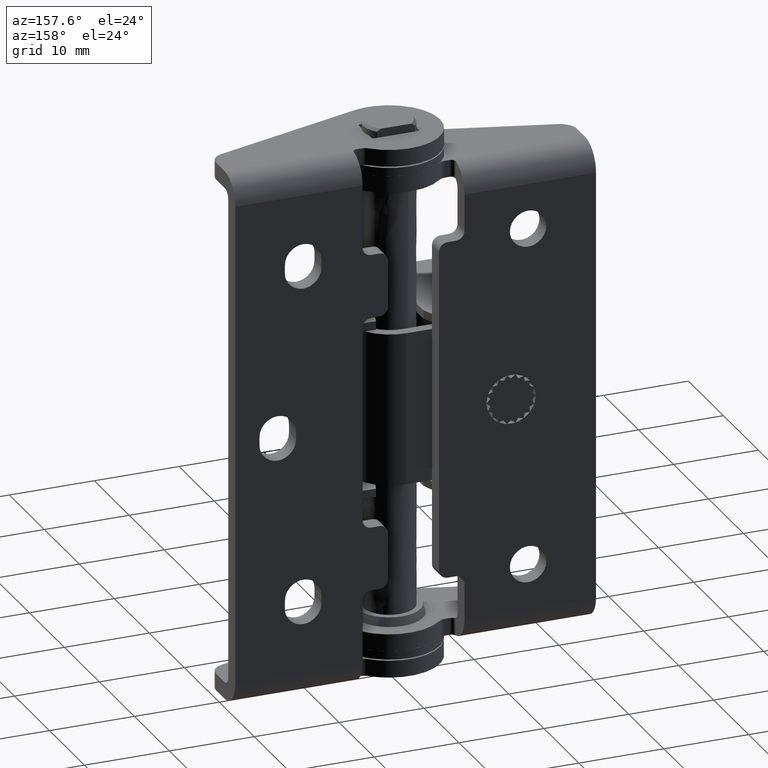
[diagram: clean part render]
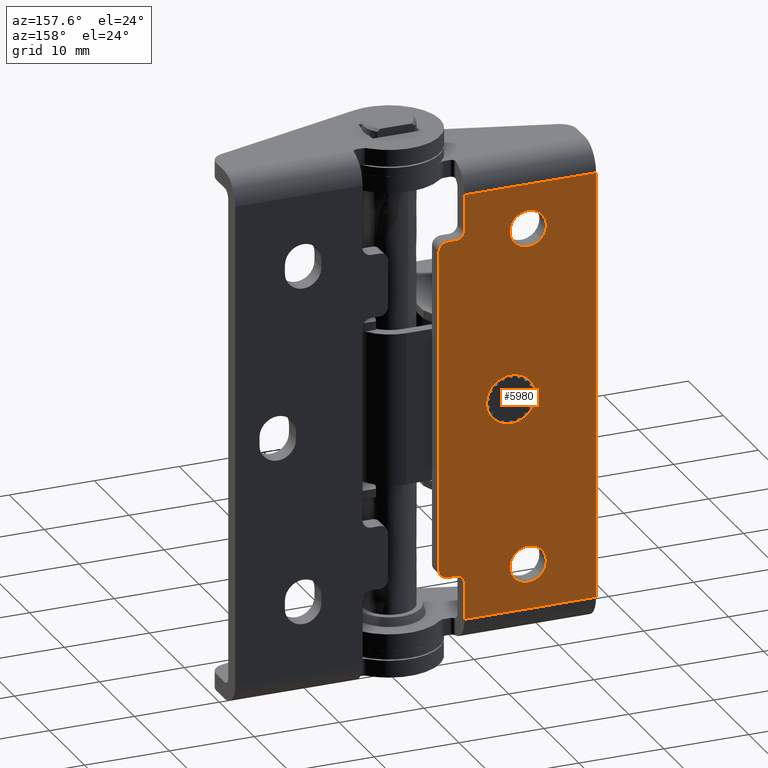
[diagram: same view with one face highlighted and labeled with its STEP entity id]
A machine part, auxiliary view. The second image highlights one B-rep face of the part: STEP entity #5980.
In plain terms, the highlighted face is a freeform B-spline surface patch.
Its self-contained STEP definition (entity closure, byte-faithful):
#4276=CARTESIAN_POINT('',(-11.350000000000220,6.999999999999901,11.450000983283630));
#4277=VERTEX_POINT('',#4276);
#4278=CARTESIAN_POINT('',(-11.914853571085150,7.000000000001387,12.902519139944960));
#4279=VERTEX_POINT('',#4278);
#4280=CARTESIAN_POINT('',(-11.350000000000220,6.999999999999901,11.450000983283630));
#4281=CARTESIAN_POINT('',(-11.349824104400859,7.000000000000166,11.699216191121760));
#4282=CARTESIAN_POINT('',(-11.417188890415551,7.000000000000545,12.081169560103890));
#4283=CARTESIAN_POINT('',(-11.644876184416480,7.000000000001033,12.564091226538730));
#4284=CARTESIAN_POINT('',(-11.813825593557331,7.000000000001287,12.792302183045420));
#4285=CARTESIAN_POINT('',(-11.914853571085150,7.000000000001387,12.902519139944960));
#4286=B_SPLINE_CURVE_WITH_KNOTS('',3,(#4280,#4281,#4282,#4283,#4284,#4285),.UNSPECIFIED.,.F.,.U.,(4,1,1,4),(9.626644E-009,0.747576527331594,1.146283648676870,1.594829446850447),.UNSPECIFIED.);
#4287=EDGE_CURVE('',#4277,#4279,#4286,.T.);
#4289=CARTESIAN_POINT('',(-13.500000000000000,6.999999999999901,9.300000000000260));
#4290=VERTEX_POINT('',#4289);
#4291=CARTESIAN_POINT('',(-13.500000000000000,6.999999999999901,9.300000000000260));
#4292=CARTESIAN_POINT('',(-13.244915548904840,6.999999999999899,9.299784182198964));
#4293=CARTESIAN_POINT('',(-12.840516548549230,6.999999999999912,9.372892016809777));
#4294=CARTESIAN_POINT('',(-12.270016956060321,6.999999999999872,9.655633706992960));
#4295=CARTESIAN_POINT('',(-11.883021360271609,6.999999999999955,9.997797297707802));
#4296=CARTESIAN_POINT('',(-11.576044538222559,6.999999999999822,10.451311081985880));
#4297=CARTESIAN_POINT('',(-11.394476824503750,6.999999999999931,10.913526914248740));
#4298=CARTESIAN_POINT('',(-11.349960803423590,6.999999999999925,11.274106170956189));
#4299=CARTESIAN_POINT('',(-11.350000000000220,6.999999999999901,11.450000983283630));
#4300=B_SPLINE_CURVE_WITH_KNOTS('',3,(#4291,#4292,#4293,#4294,#4295,#4296,#4297,#4298,#4299),.UNSPECIFIED.,.F.,.U.,(4,1,1,1,1,1,4),(0.000000091121552,0.765153841179125,1.213705938557538,1.899680186562595,2.295460679671225,2.849551854943931,3.377233847388638),.UNSPECIFIED.);
#4301=EDGE_CURVE('',#4290,#4277,#4300,.T.);
#4303=CARTESIAN_POINT('',(-15.085146428914850,7.000000000001387,9.997480860055559));
#4304=VERTEX_POINT('',#4303);
#4305=CARTESIAN_POINT('',(-15.085146428914850,7.000000000001387,9.997480860055559));
#4306=CARTESIAN_POINT('',(-14.928444723366059,7.000000000001227,9.826254483576355));
#4307=CARTESIAN_POINT('',(-14.625351782394819,7.000000000001004,9.587878370655004));
#4308=CARTESIAN_POINT('',(-14.075522842847960,7.000000000000358,9.354397554944958));
#4309=CARTESIAN_POINT('',(-13.713530180434820,7.000000000000135,9.299903789092925));
#4310=CARTESIAN_POINT('',(-13.500000000000000,6.999999999999901,9.300000000000260));
#4311=B_SPLINE_CURVE_WITH_KNOTS('',3,(#4305,#4306,#4307,#4308,#4309,#4310),.UNSPECIFIED.,.F.,.U.,(4,1,1,4),(0.000000025281499,0.696263034407957,1.141867573541640,1.782430022949897),.UNSPECIFIED.);
#4312=EDGE_CURVE('',#4304,#4290,#4311,.T.);
#4384=CARTESIAN_POINT('',(-13.500000000000000,6.999999999999901,13.600000000000261));
#4385=VERTEX_POINT('',#4384);
#4386=CARTESIAN_POINT('',(-11.914853571085150,7.000000000001387,12.902519139944960));
#4387=CARTESIAN_POINT('',(-12.059036285259159,7.000000000001295,13.060027525068969));
#4388=CARTESIAN_POINT('',(-12.299975761806220,7.000000000000985,13.254668515038610));
#4389=CARTESIAN_POINT('',(-12.698846329220290,7.000000000000663,13.455437673401550));
#4390=CARTESIAN_POINT('',(-13.063681899072300,7.000000000000377,13.570054879327451));
#4391=CARTESIAN_POINT('',(-13.351462963718250,6.999999999999955,13.600023958139300));
#4392=CARTESIAN_POINT('',(-13.500000000000000,6.999999999999901,13.600000000000261));
#4393=B_SPLINE_CURVE_WITH_KNOTS('',3,(#4386,#4387,#4388,#4389,#4390,#4391,#4392),.UNSPECIFIED.,.F.,.U.,(4,1,1,1,4),(0.000000025282734,0.640562869361897,0.919051932901690,1.336822525936281,1.782430022949893),.UNSPECIFIED.);
#4394=EDGE_CURVE('',#4279,#4385,#4393,.T.);
#4433=CARTESIAN_POINT('',(-15.649999999999780,6.999999999999901,11.449999016716889));
#4434=VERTEX_POINT('',#4433);
#4435=CARTESIAN_POINT('',(-15.649999999999780,6.999999999999901,11.449999016716889));
#4436=CARTESIAN_POINT('',(-15.650047426852559,7.000000000000097,11.267260158901671));
#4437=CARTESIAN_POINT('',(-15.601019339028930,7.000000000000465,10.885181238084570));
#4438=CARTESIAN_POINT('',(-15.394965862384399,7.000000000000989,10.389571470587160));
#4439=CARTESIAN_POINT('',(-15.186158523594230,7.000000000001279,10.107704362450910));
#4440=CARTESIAN_POINT('',(-15.085146428914850,7.000000000001387,9.997480860055559));
#4441=B_SPLINE_CURVE_WITH_KNOTS('',3,(#4435,#4436,#4437,#4438,#4439,#4440),.UNSPECIFIED.,.F.,.U.,(4,1,1,4),(9.626749E-009,0.548222776918399,1.146283648676893,1.594829446850443),.UNSPECIFIED.);
#4442=EDGE_CURVE('',#4434,#4304,#4441,.T.);
#4444=CARTESIAN_POINT('',(-13.500000000000000,6.999999999999901,13.600000000000261));
#4445=CARTESIAN_POINT('',(-13.719885034694981,6.999999999999911,13.600113506408210));
#4446=CARTESIAN_POINT('',(-14.080398576490680,6.999999999999892,13.544175041676199));
#4447=CARTESIAN_POINT('',(-14.551505470897540,6.999999999999910,13.342211853900610));
#4448=CARTESIAN_POINT('',(-14.936347213286910,6.999999999999893,13.074724800702439));
#4449=CARTESIAN_POINT('',(-15.257681995585800,6.999999999999904,12.720174236192481));
#4450=CARTESIAN_POINT('',(-15.499122484805770,6.999999999999898,12.287814135806331));
#4451=CARTESIAN_POINT('',(-15.625029175010170,6.999999999999910,11.863353762017510));
#4452=CARTESIAN_POINT('',(-15.650003956267250,6.999999999999891,11.573121224391890));
#4453=CARTESIAN_POINT('',(-15.649999999999780,6.999999999999901,11.449999016716889));
#4454=B_SPLINE_CURVE_WITH_KNOTS('',3,(#4444,#4445,#4446,#4447,#4448,#4449,#4450,#4451,#4452,#4453),.UNSPECIFIED.,.F.,.U.,(4,1,1,1,1,1,1,4),(0.000000091119607,0.659613345966859,1.081772563665805,1.530321830090612,2.057987691561539,2.506540696588848,3.007863124509934,3.377233847388634),.UNSPECIFIED.);
#4455=EDGE_CURVE('',#4385,#4434,#4454,.T.);
#4478=CARTESIAN_POINT('',(-11.350000000000220,6.999999999999901,51.450000983283367));
#4479=VERTEX_POINT('',#4478);
#4480=CARTESIAN_POINT('',(-11.914853571085150,7.000000000001387,52.902519139944708));
#4481=VERTEX_POINT('',#4480);
#4482=CARTESIAN_POINT('',(-11.350000000000220,6.999999999999901,51.450000983283367));
#4483=CARTESIAN_POINT('',(-11.349803527445390,7.000000000000155,51.699219743889628));
#4484=CARTESIAN_POINT('',(-11.417207431365350,7.000000000000547,52.081165228204220));
#4485=CARTESIAN_POINT('',(-11.644873420694340,7.000000000001038,52.564092687007857));
#4486=CARTESIAN_POINT('',(-11.813824751707379,7.000000000001276,52.792301904911547));
#4487=CARTESIAN_POINT('',(-11.914853571085150,7.000000000001387,52.902519139944708));
#4488=B_SPLINE_CURVE_WITH_KNOTS('',3,(#4482,#4483,#4484,#4485,#4486,#4487),.UNSPECIFIED.,.F.,.U.,(4,1,1,4),(9.625099E-009,0.747576527331099,1.146283648676696,1.594829446850447),.UNSPECIFIED.);
#4489=EDGE_CURVE('',#4479,#4481,#4488,.T.);
#4491=CARTESIAN_POINT('',(-13.500000000000000,6.999999999999901,49.299999999999997));
#4492=VERTEX_POINT('',#4491);
#4493=CARTESIAN_POINT('',(-13.500000000000000,6.999999999999901,49.299999999999997));
#4494=CARTESIAN_POINT('',(-13.297714091521510,6.999999999999912,49.299923150694489));
#4495=CARTESIAN_POINT('',(-12.937163484588631,6.999999999999877,49.351271344512341));
#4496=CARTESIAN_POINT('',(-12.479366410155709,6.999999999999935,49.540919427151749));
#4497=CARTESIAN_POINT('',(-12.121027093669960,6.999999999999860,49.783572699984582));
#4498=CARTESIAN_POINT('',(-11.770991948439731,6.999999999999993,50.133451500772793));
#4499=CARTESIAN_POINT('',(-11.444984487341181,6.999999999999664,50.684993327751918));
#4500=CARTESIAN_POINT('',(-11.349736240743200,7.000000000000054,51.177330911499020));
#4501=CARTESIAN_POINT('',(-11.350000000000220,6.999999999999901,51.450000983283367));
#4502=B_SPLINE_CURVE_WITH_KNOTS('',3,(#4493,#4494,#4495,#4496,#4497,#4498,#4499,#4500,#4501),.UNSPECIFIED.,.F.,.U.,(4,1,1,1,1,1,4),(0.000000091119495,0.606842724967415,1.081772563666457,1.477554163976067,1.899680186561690,2.559310118496567,3.377233847388589),.UNSPECIFIED.);
#4503=EDGE_CURVE('',#4492,#4479,#4502,.T.);
#4505=CARTESIAN_POINT('',(-15.085146428914850,7.000000000001386,49.997480860055298));
#4506=VERTEX_POINT('',#4505);
#4507=CARTESIAN_POINT('',(-15.085146428914850,7.000000000001386,49.997480860055298));
#4508=CARTESIAN_POINT('',(-14.966012379458061,7.000000000001274,49.867401535439953));
#4509=CARTESIAN_POINT('',(-14.709717242318220,7.000000000001045,49.648997069235563));
#4510=CARTESIAN_POINT('',(-14.177555472684650,7.000000000000531,49.376737536876647));
#4511=CARTESIAN_POINT('',(-13.759976083155291,7.000000000000134,49.299769057194020));
#4512=CARTESIAN_POINT('',(-13.500000000000000,6.999999999999901,49.299999999999997));
#4513=B_SPLINE_CURVE_WITH_KNOTS('',3,(#4507,#4508,#4509,#4510,#4511,#4512),.UNSPECIFIED.,.F.,.U.,(4,1,1,4),(0.000000025281598,0.529161349119868,1.002608568048530,1.782430022949870),.UNSPECIFIED.);
#4514=EDGE_CURVE('',#4506,#4492,#4513,.T.);
#4585=CARTESIAN_POINT('',(-13.500000000000000,6.999999999999901,53.600000000000001));
#4586=VERTEX_POINT('',#4585);
#4587=CARTESIAN_POINT('',(-11.914853571085150,7.000000000001387,52.902519139944708));
#4588=CARTESIAN_POINT('',(-12.033985760087260,7.000000000001287,53.032601027247530));
#4589=CARTESIAN_POINT('',(-12.268930763241791,7.000000000001036,53.232792454143997));
#4590=CARTESIAN_POINT('',(-12.646820395119590,7.000000000000719,53.435442604148051));
#4591=CARTESIAN_POINT('',(-13.045122166207671,7.000000000000294,53.566270548852543));
#4592=CARTESIAN_POINT('',(-13.332894903284201,7.000000000000116,53.600035455533707));
#4593=CARTESIAN_POINT('',(-13.500000000000000,6.999999999999901,53.600000000000001));
#4594=B_SPLINE_CURVE_WITH_KNOTS('',3,(#4587,#4588,#4589,#4590,#4591,#4592,#4593),.UNSPECIFIED.,.F.,.U.,(4,1,1,1,4),(0.000000025281269,0.529161349119554,0.919051932901217,1.281120610901377,1.782430022949922),.UNSPECIFIED.);
#4595=EDGE_CURVE('',#4481,#4586,#4594,.T.);
#4634=CARTESIAN_POINT('',(-15.649999999999780,6.999999999999901,51.449999016716632));
#4635=VERTEX_POINT('',#4634);
#4636=CARTESIAN_POINT('',(-15.649999999999780,6.999999999999901,51.449999016716632));
#4637=CARTESIAN_POINT('',(-15.650056217668419,7.000000000000081,51.267255886182859));
#4638=CARTESIAN_POINT('',(-15.609496754780890,7.000000000000413,50.951652933430204));
#4639=CARTESIAN_POINT('',(-15.427611989236190,7.000000000000950,50.449691148033047));
#4640=CARTESIAN_POINT('',(-15.231121293747130,7.000000000001185,50.156652242387047));
#4641=CARTESIAN_POINT('',(-15.085146428914850,7.000000000001386,49.997480860055298));
#4642=B_SPLINE_CURVE_WITH_KNOTS('',3,(#4636,#4637,#4638,#4639,#4640,#4641),.UNSPECIFIED.,.F.,.U.,(4,1,1,4),(9.627450E-009,0.548222776919041,0.946929697205216,1.594829446850438),.UNSPECIFIED.);
#4643=EDGE_CURVE('',#4635,#4506,#4642,.T.);
#4645=CARTESIAN_POINT('',(-13.500000000000000,6.999999999999901,53.600000000000001));
#4646=CARTESIAN_POINT('',(-13.719884455131130,6.999999999999901,53.600104998759242));
#4647=CARTESIAN_POINT('',(-14.080396424128820,6.999999999999899,53.544179693119517));
#4648=CARTESIAN_POINT('',(-14.567758547183869,6.999999999999905,53.335256555518107));
#4649=CARTESIAN_POINT('',(-14.906529936518970,6.999999999999851,53.093542890963690));
#4650=CARTESIAN_POINT('',(-15.186235352528140,7.000000000000001,52.799726515933052));
#4651=CARTESIAN_POINT('',(-15.389251788731119,6.999999999999694,52.499881527415923));
#4652=CARTESIAN_POINT('',(-15.589647826243571,7.000000000000068,52.047966786608292));
#4653=CARTESIAN_POINT('',(-15.650133161767570,6.999999999999825,51.687479269272593));
#4654=CARTESIAN_POINT('',(-15.649999999999780,6.999999999999901,51.449999016716632));
#4655=B_SPLINE_CURVE_WITH_KNOTS('',3,(#4645,#4646,#4647,#4648,#4649,#4650,#4651,#4652,#4653,#4654),.UNSPECIFIED.,.F.,.U.,(4,1,1,1,1,1,1,4),(0.000000091117434,0.659613345965780,1.081772563665685,1.583088384246577,1.899680186561499,2.295460679670955,2.664849613858922,3.377233847388631),.UNSPECIFIED.);
#4656=EDGE_CURVE('',#4586,#4635,#4655,.T.);
#4679=CARTESIAN_POINT('',(-8.599999999999717,6.999999999999901,31.450000845632481));
#4680=VERTEX_POINT('',#4679);
#4681=CARTESIAN_POINT('',(-9.361895594287976,7.000000000005779,33.409211773080763));
#4682=VERTEX_POINT('',#4681);
#4683=CARTESIAN_POINT('',(-8.599999999999717,6.999999999999901,31.450000845632481));
#4684=CARTESIAN_POINT('',(-8.599883217985791,7.000000000000745,31.730112640922329));
#4685=CARTESIAN_POINT('',(-8.663828848530704,7.000000000002057,32.166972515790178));
#4686=CARTESIAN_POINT('',(-8.924566045712028,7.000000000004055,32.837483267360923));
#4687=CARTESIAN_POINT('',(-9.172568061609537,7.000000000005175,33.202774094453957));
#4688=CARTESIAN_POINT('',(-9.361895594287976,7.000000000005779,33.409211773080763));
#4689=B_SPLINE_CURVE_WITH_KNOTS('',3,(#4683,#4684,#4685,#4686,#4687,#4688),.UNSPECIFIED.,.F.,.U.,(4,1,1,4),(0.000000019595375,0.840286733407731,1.310842900055719,2.151129613859473),.UNSPECIFIED.);
#4690=EDGE_CURVE('',#4680,#4682,#4689,.T.);
#4692=CARTESIAN_POINT('',(-11.500000000000000,6.999999999999901,28.549999999999589));
#4693=VERTEX_POINT('',#4692);
#4694=CARTESIAN_POINT('',(-11.500000000000000,6.999999999999901,28.549999999999589));
#4695=CARTESIAN_POINT('',(-11.155930645840771,6.999999999999887,28.549715182873520));
#4696=CARTESIAN_POINT('',(-10.634184107946330,6.999999999999917,28.644024891357098));
#4697=CARTESIAN_POINT('',(-9.968432418111847,6.999999999999893,28.963980134673410));
#4698=CARTESIAN_POINT('',(-9.493497337248130,6.999999999999877,29.325306449752549));
#4699=CARTESIAN_POINT('',(-9.044812333197690,6.999999999999946,29.851883803262449));
#4700=CARTESIAN_POINT('',(-8.693593065160480,6.999999999999880,30.560372245714870));
#4701=CARTESIAN_POINT('',(-8.599841204502129,6.999999999999904,31.141551828253341));
#4702=CARTESIAN_POINT('',(-8.599999999999717,6.999999999999901,31.450000845632481));
#4703=B_SPLINE_CURVE_WITH_KNOTS('',3,(#4694,#4695,#4696,#4697,#4698,#4699,#4700,#4701,#4702),.UNSPECIFIED.,.F.,.U.,(4,1,1,1,1,1,4),(0.000000089463252,1.032067076530033,1.565899552651043,2.206510683447770,2.811497757180136,3.630041215288082,4.555338406961467),.UNSPECIFIED.);
#4704=EDGE_CURVE('',#4693,#4680,#4703,.T.);
#4706=CARTESIAN_POINT('',(-13.638104405712030,7.000000000005779,29.490788226919229));
#4707=VERTEX_POINT('',#4706);
#4708=CARTESIAN_POINT('',(-13.638104405712030,7.000000000005779,29.490788226919229));
#4709=CARTESIAN_POINT('',(-13.435169209691439,7.000000000005222,29.269100733776231));
#4710=CARTESIAN_POINT('',(-13.068533854578080,7.000000000004214,28.976809115142050));
#4711=CARTESIAN_POINT('',(-12.338801154031600,7.000000000002203,28.638651282689359));
#4712=CARTESIAN_POINT('',(-11.838140365548250,7.000000000000815,28.549722434846121));
#4713=CARTESIAN_POINT('',(-11.500000000000000,6.999999999999901,28.549999999999589));
#4714=B_SPLINE_CURVE_WITH_KNOTS('',3,(#4708,#4709,#4710,#4711,#4712,#4713),.UNSPECIFIED.,.F.,.U.,(4,1,1,4),(0.000000026658980,0.901578409801268,1.389927588495059,2.404207900827645),.UNSPECIFIED.);
#4715=EDGE_CURVE('',#4707,#4693,#4714,.T.);
#4787=CARTESIAN_POINT('',(-11.500000000000000,6.999999999999901,34.350000000000399));
#4788=VERTEX_POINT('',#4787);
#4789=CARTESIAN_POINT('',(-9.361895594287976,7.000000000005779,33.409211773080763));
#4790=CARTESIAN_POINT('',(-9.488777183820567,7.000000000005418,33.547705618519537));
#4791=CARTESIAN_POINT('',(-9.778932993791010,7.000000000004659,33.808324288502916));
#4792=CARTESIAN_POINT('',(-10.289105289211321,7.000000000003220,34.108033800386700));
#4793=CARTESIAN_POINT('',(-10.873929875045331,7.000000000001618,34.304292003473918));
#4794=CARTESIAN_POINT('',(-11.287124683065411,7.000000000000499,34.350040198113213));
#4795=CARTESIAN_POINT('',(-11.500000000000000,6.999999999999901,34.350000000000399));
#4796=B_SPLINE_CURVE_WITH_KNOTS('',3,(#4789,#4790,#4791,#4792,#4793,#4794,#4795),.UNSPECIFIED.,.F.,.U.,(4,1,1,1,4),(0.000000026656258,0.563485413367965,1.164552350093193,1.765589350453693,2.404207900827668),.UNSPECIFIED.);
#4797=EDGE_CURVE('',#4682,#4788,#4796,.T.);
#4837=CARTESIAN_POINT('',(-14.400000000000279,6.999999999999901,31.449999154367472));
#4838=VERTEX_POINT('',#4837);
#4839=CARTESIAN_POINT('',(-14.400000000000279,6.999999999999901,31.449999154367472));
#4840=CARTESIAN_POINT('',(-14.400040539343459,7.000000000000555,31.237124456142130));
#4841=CARTESIAN_POINT('',(-14.357853434975061,7.000000000001643,30.856220033643471));
#4842=CARTESIAN_POINT('',(-14.140306884054340,7.000000000003777,30.170116987673651));
#4843=CARTESIAN_POINT('',(-13.865407223767351,7.000000000005014,29.738447688324030));
#4844=CARTESIAN_POINT('',(-13.638104405712030,7.000000000005779,29.490788226919229));
#4845=B_SPLINE_CURVE_WITH_KNOTS('',3,(#4839,#4840,#4841,#4842,#4843,#4844),.UNSPECIFIED.,.F.,.U.,(4,1,1,4),(0.000000019597337,0.638618788899380,1.142782150567900,2.151129613859427),.UNSPECIFIED.);
#4846=EDGE_CURVE('',#4838,#4707,#4845,.T.);
#4848=CARTESIAN_POINT('',(-11.500000000000000,6.999999999999901,34.350000000000399));
#4849=CARTESIAN_POINT('',(-11.808455860879850,6.999999999999903,34.350160059467093));
#4850=CARTESIAN_POINT('',(-12.282842749566271,6.999999999999908,34.273556525134389));
#4851=CARTESIAN_POINT('',(-12.928527875507781,6.999999999999901,33.996745843680443));
#4852=CARTESIAN_POINT('',(-13.399247671990031,6.999999999999898,33.669527384312183));
#4853=CARTESIAN_POINT('',(-13.864516593346821,6.999999999999901,33.174887003838627));
#4854=CARTESIAN_POINT('',(-14.186854123088811,6.999999999999901,32.613938940933011));
#4855=CARTESIAN_POINT('',(-14.366047217589781,6.999999999999909,31.995678165543652));
#4856=CARTESIAN_POINT('',(-14.400014908450050,6.999999999999895,31.627941596604231));
#4857=CARTESIAN_POINT('',(-14.400000000000279,6.999999999999901,31.449999154367472));
#4858=B_SPLINE_CURVE_WITH_KNOTS('',3,(#4848,#4849,#4850,#4851,#4852,#4853,#4854,#4855,#4856,#4857),.UNSPECIFIED.,.F.,.U.,(4,1,1,1,1,1,1,4),(0.000000089466653,0.925297361483867,1.423550012460772,2.099729446106743,2.633552738970033,3.452093277733931,4.021509896923988,4.555338406961488),.UNSPECIFIED.);
#4859=EDGE_CURVE('',#4788,#4838,#4858,.T.);
#5302=CARTESIAN_POINT('',(-5.999999999999920,6.999999999999901,56.750000000000000));
#5303=VERTEX_POINT('',#5302);
#5318=CARTESIAN_POINT('',(-21.500000000000000,6.999999999999901,56.750000000000000));
#5319=VERTEX_POINT('',#5318);
#5320=CARTESIAN_POINT('',(-21.500000000000000,6.999999999999901,56.750000000000000));
#5321=CARTESIAN_POINT('',(-5.999999999999920,6.999999999999901,56.750000000000000));
#5322=QUASI_UNIFORM_CURVE('',1,(#5320,#5321),.UNSPECIFIED.,.F.,.U.);
#5323=EDGE_CURVE('',#5319,#5303,#5322,.T.);
#5379=CARTESIAN_POINT('',(-21.500000000000000,6.999999999999901,6.150000000000000));
#5380=VERTEX_POINT('',#5379);
#5396=CARTESIAN_POINT('',(-6.0,6.999999999999901,6.150000000000000));
#5397=VERTEX_POINT('',#5396);
#5398=CARTESIAN_POINT('',(-6.0,6.999999999999901,6.150000000000000));
#5399=CARTESIAN_POINT('',(-21.500000000000000,6.999999999999901,6.150000000000000));
#5400=QUASI_UNIFORM_CURVE('',1,(#5398,#5399),.UNSPECIFIED.,.F.,.U.);
#5401=EDGE_CURVE('',#5397,#5380,#5400,.T.);
#5854=CARTESIAN_POINT('',(-22.424074964143411,7.0,59.277469901927383));
#5855=CARTESIAN_POINT('',(-2.075924539647865,7.0,59.277469901927383));
#5856=CARTESIAN_POINT('',(-22.424074964143411,7.0,3.622528740874860));
#5857=CARTESIAN_POINT('',(-2.075924539647865,7.0,3.622528740874860));
#5858=B_SPLINE_SURFACE_WITH_KNOTS('',1,1,((#5854,#5856),(#5855,#5857)),.UNSPECIFIED.,.F.,.F.,.U.,(2,2),(2,2),(0.0,20.348150424495550),(0.0,55.654941161052520),.UNSPECIFIED.);
#5859=CARTESIAN_POINT('',(-6.0,6.999999999999901,10.449999999999999));
#5860=VERTEX_POINT('',#5859);
#5861=CARTESIAN_POINT('',(-6.0,6.999999999999901,6.150000000000000));
#5862=CARTESIAN_POINT('',(-6.0,6.999999999999901,10.449999999999999));
#5863=QUASI_UNIFORM_CURVE('',1,(#5861,#5862),.UNSPECIFIED.,.F.,.U.);
#5864=EDGE_CURVE('',#5397,#5860,#5863,.T.);
#5865=ORIENTED_EDGE('',*,*,#5864,.F.);
#5866=ORIENTED_EDGE('',*,*,#5401,.T.);
#5867=CARTESIAN_POINT('',(-21.500000000000000,6.999999999999901,56.750000000000000));
#5868=CARTESIAN_POINT('',(-21.500000000000000,6.999999999999901,6.150000000000000));
#5869=QUASI_UNIFORM_CURVE('',1,(#5867,#5868),.UNSPECIFIED.,.F.,.U.);
#5870=EDGE_CURVE('',#5319,#5380,#5869,.T.);
#5871=ORIENTED_EDGE('',*,*,#5870,.F.);
#5872=ORIENTED_EDGE('',*,*,#5323,.T.);
#5873=CARTESIAN_POINT('',(-6.0,6.999999999999901,52.450000000000003));
#5874=VERTEX_POINT('',#5873);
#5875=CARTESIAN_POINT('',(-6.0,6.999999999999901,52.450000000000003));
#5876=CARTESIAN_POINT('',(-5.999999999999920,6.999999999999901,56.750000000000000));
#5877=QUASI_UNIFORM_CURVE('',1,(#5875,#5876),.UNSPECIFIED.,.F.,.U.);
#5878=EDGE_CURVE('',#5874,#5303,#5877,.T.);
#5879=ORIENTED_EDGE('',*,*,#5878,.F.);
#5880=CARTESIAN_POINT('',(-4.999999999999920,6.999999999999901,51.450000000000003));
#5881=VERTEX_POINT('',#5880);
#5882=CARTESIAN_POINT('',(-6.0,6.999999999999901,52.450000000000003));
#5883=CARTESIAN_POINT('',(-6.000079023560948,6.999999999999909,52.335453053802397));
#5884=CARTESIAN_POINT('',(-5.964464834983895,6.999999999999886,52.130974494449511));
#5885=CARTESIAN_POINT('',(-5.831382019599326,6.999999999999924,51.874481330572252));
#5886=CARTESIAN_POINT('',(-5.681906213179762,6.999999999999870,51.709596529252913));
#5887=CARTESIAN_POINT('',(-5.510591653134476,6.999999999999958,51.582532152553313));
#5888=CARTESIAN_POINT('',(-5.294500449788154,6.999999999999827,51.480301240390368));
#5889=CARTESIAN_POINT('',(-5.106359090358000,6.999999999999944,51.449949679023760));
#5890=CARTESIAN_POINT('',(-4.999999999999920,6.999999999999901,51.450000000000003));
#5891=B_SPLINE_CURVE_WITH_KNOTS('',3,(#5882,#5883,#5884,#5885,#5886,#5887,#5888,#5889,#5890),.UNSPECIFIED.,.F.,.U.,(4,1,1,1,1,1,4),(0.000000143574292,0.343620060913960,0.613615416984931,0.859036542771853,1.006303829732361,1.251764774323132,1.570835744349130),.UNSPECIFIED.);
#5892=EDGE_CURVE('',#5874,#5881,#5891,.T.);
#5893=ORIENTED_EDGE('',*,*,#5892,.T.);
#5894=CARTESIAN_POINT('',(-4.000000000000116,6.999999999999901,51.450000000000003));
#5895=VERTEX_POINT('',#5894);
#5896=CARTESIAN_POINT('',(-4.000000000000116,6.999999999999901,51.450000000000003));
#5897=CARTESIAN_POINT('',(-4.999999999999920,6.999999999999901,51.450000000000003));
#5898=QUASI_UNIFORM_CURVE('',1,(#5896,#5897),.UNSPECIFIED.,.F.,.U.);
#5899=EDGE_CURVE('',#5895,#5881,#5898,.T.);
#5900=ORIENTED_EDGE('',*,*,#5899,.F.);
#5901=CARTESIAN_POINT('',(-2.999999999999945,6.999999999999901,50.450000000000003));
#5902=VERTEX_POINT('',#5901);
#5903=CARTESIAN_POINT('',(-2.999999999999945,6.999999999999901,50.450000000000003));
#5904=CARTESIAN_POINT('',(-2.999923853833358,6.999999999999908,50.564545011087141));
#5905=CARTESIAN_POINT('',(-3.035528704153792,6.999999999999879,50.769030311552243));
#5906=CARTESIAN_POINT('',(-3.168626404996941,6.999999999999933,51.025509056310078));
#5907=CARTESIAN_POINT('',(-3.356823453873130,6.999999999999861,51.233196787550419));
#5908=CARTESIAN_POINT('',(-3.631912708160352,6.999999999999985,51.402742084006590));
#5909=CARTESIAN_POINT('',(-3.869086337058170,6.999999999999800,51.450132720079623));
#5910=CARTESIAN_POINT('',(-4.000000000000116,6.999999999999901,51.450000000000003));
#5911=B_SPLINE_CURVE_WITH_KNOTS('',3,(#5903,#5904,#5905,#5906,#5907,#5908,#5909,#5910),.UNSPECIFIED.,.F.,.U.,(4,1,1,1,1,4),(0.000000143580302,0.343620060919080,0.613615416989115,0.859036542775060,1.178126848961774,1.570835744349229),.UNSPECIFIED.);
#5912=EDGE_CURVE('',#5902,#5895,#5911,.T.);
#5913=ORIENTED_EDGE('',*,*,#5912,.F.);
#5914=CARTESIAN_POINT('',(-3.000000000000115,6.999999999999901,12.449999999999999));
#5915=VERTEX_POINT('',#5914);
#5916=CARTESIAN_POINT('',(-3.000000000000115,6.999999999999901,12.449999999999999));
#5917=CARTESIAN_POINT('',(-2.999999999999945,6.999999999999901,50.450000000000003));
#5918=QUASI_UNIFORM_CURVE('',1,(#5916,#5917),.UNSPECIFIED.,.F.,.U.);
#5919=EDGE_CURVE('',#5915,#5902,#5918,.T.);
#5920=ORIENTED_EDGE('',*,*,#5919,.F.);
#5921=CARTESIAN_POINT('',(-4.000000000000116,6.999999999999901,11.450000000000241));
#5922=VERTEX_POINT('',#5921);
#5923=CARTESIAN_POINT('',(-4.000000000000116,6.999999999999901,11.450000000000241));
#5924=CARTESIAN_POINT('',(-3.901823731263820,6.999999999999902,11.449960059104081));
#5925=CARTESIAN_POINT('',(-3.730039909226124,6.999999999999887,11.475506394594470));
#5926=CARTESIAN_POINT('',(-3.518212327198445,6.999999999999918,11.566326598899430));
#5927=CARTESIAN_POINT('',(-3.342173821548520,6.999999999999893,11.687110639258551));
#5928=CARTESIAN_POINT('',(-3.160181996513412,6.999999999999904,11.878091170023350));
#5929=CARTESIAN_POINT('',(-3.028834904319777,6.999999999999907,12.147266964901229));
#5930=CARTESIAN_POINT('',(-2.999988355998082,6.999999999999887,12.360012402943861));
#5931=CARTESIAN_POINT('',(-3.000000000000115,6.999999999999901,12.449999999999999));
#5932=B_SPLINE_CURVE_WITH_KNOTS('',3,(#5923,#5924,#5925,#5926,#5927,#5928,#5929,#5930,#5931),.UNSPECIFIED.,.F.,.U.,(4,1,1,1,1,1,4),(0.000000143573033,0.294524980175164,0.515431765837558,0.687244893560476,0.932667128950878,1.300850463392504,1.570835744348834),.UNSPECIFIED.);
#5933=EDGE_CURVE('',#5922,#5915,#5932,.T.);
#5934=ORIENTED_EDGE('',*,*,#5933,.F.);
#5935=CARTESIAN_POINT('',(-5.0,6.999999999999901,11.449999999999999));
#5936=VERTEX_POINT('',#5935);
#5937=CARTESIAN_POINT('',(-5.0,6.999999999999901,11.449999999999999));
#5938=CARTESIAN_POINT('',(-4.000000000000116,6.999999999999901,11.450000000000241));
#5939=QUASI_UNIFORM_CURVE('',1,(#5937,#5938),.UNSPECIFIED.,.F.,.U.);
#5940=EDGE_CURVE('',#5936,#5922,#5939,.T.);
#5941=ORIENTED_EDGE('',*,*,#5940,.F.);
#5942=CARTESIAN_POINT('',(-5.0,6.999999999999901,11.449999999999999));
#5943=CARTESIAN_POINT('',(-5.098176106445715,6.999999999999909,11.450040169792700));
#5944=CARTESIAN_POINT('',(-5.269959231603306,6.999999999999880,11.424491924108921));
#5945=CARTESIAN_POINT('',(-5.504497967027901,6.999999999999905,11.323952653696900));
#5946=CARTESIAN_POINT('',(-5.676626779023465,6.999999999999912,11.196280019446739));
#5947=CARTESIAN_POINT('',(-5.839848073160372,6.999999999999877,11.011748835731771));
#5948=CARTESIAN_POINT('',(-5.965764261771072,6.999999999999922,10.769055308518690));
#5949=CARTESIAN_POINT('',(-6.000051201268679,6.999999999999899,10.556358175081391));
#5950=CARTESIAN_POINT('',(-6.0,6.999999999999901,10.449999999999999));
#5951=B_SPLINE_CURVE_WITH_KNOTS('',3,(#5942,#5943,#5944,#5945,#5946,#5947,#5948,#5949,#5950),.UNSPECIFIED.,.F.,.U.,(4,1,1,1,1,1,4),(0.000000143573562,0.294524980175678,0.515431765838070,0.760893499044596,0.932667128951353,1.251764774323209,1.570835744349102),.UNSPECIFIED.);
#5952=EDGE_CURVE('',#5936,#5860,#5951,.T.);
#5953=ORIENTED_EDGE('',*,*,#5952,.T.);
#5954=EDGE_LOOP('',(#5865,#5866,#5871,#5872,#5879,#5893,#5900,#5913,#5920,#5934,#5941,#5953));
#5955=FACE_OUTER_BOUND('',#5954,.T.);
#5956=ORIENTED_EDGE('',*,*,#4859,.T.);
#5957=ORIENTED_EDGE('',*,*,#4846,.T.);
#5958=ORIENTED_EDGE('',*,*,#4715,.T.);
#5959=ORIENTED_EDGE('',*,*,#4704,.T.);
#5960=ORIENTED_EDGE('',*,*,#4690,.T.);
#5961=ORIENTED_EDGE('',*,*,#4797,.T.);
#5962=EDGE_LOOP('',(#5956,#5957,#5958,#5959,#5960,#5961));
#5963=FACE_BOUND('',#5962,.T.);
#5964=ORIENTED_EDGE('',*,*,#4656,.T.);
#5965=ORIENTED_EDGE('',*,*,#4643,.T.);
#5966=ORIENTED_EDGE('',*,*,#4514,.T.);
#5967=ORIENTED_EDGE('',*,*,#4503,.T.);
#5968=ORIENTED_EDGE('',*,*,#4489,.T.);
#5969=ORIENTED_EDGE('',*,*,#4595,.T.);
#5970=EDGE_LOOP('',(#5964,#5965,#5966,#5967,#5968,#5969));
#5971=FACE_BOUND('',#5970,.T.);
#5972=ORIENTED_EDGE('',*,*,#4455,.T.);
#5973=ORIENTED_EDGE('',*,*,#4442,.T.);
#5974=ORIENTED_EDGE('',*,*,#4312,.T.);
#5975=ORIENTED_EDGE('',*,*,#4301,.T.);
#5976=ORIENTED_EDGE('',*,*,#4287,.T.);
#5977=ORIENTED_EDGE('',*,*,#4394,.T.);
#5978=EDGE_LOOP('',(#5972,#5973,#5974,#5975,#5976,#5977));
#5979=FACE_BOUND('',#5978,.T.);
#5980=ADVANCED_FACE('',(#5955,#5963,#5971,#5979),#5858,.T.);